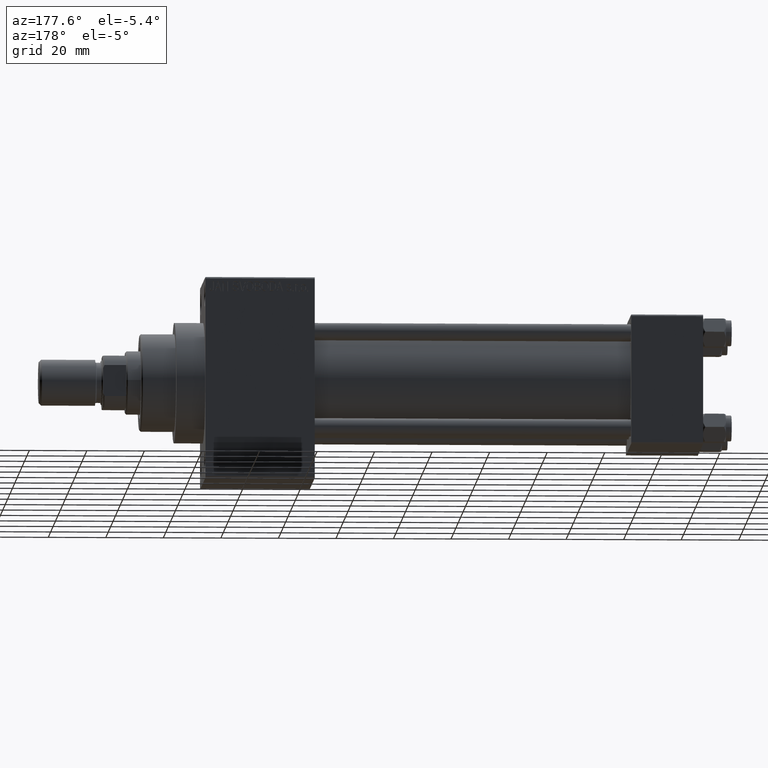
[diagram: clean part render]
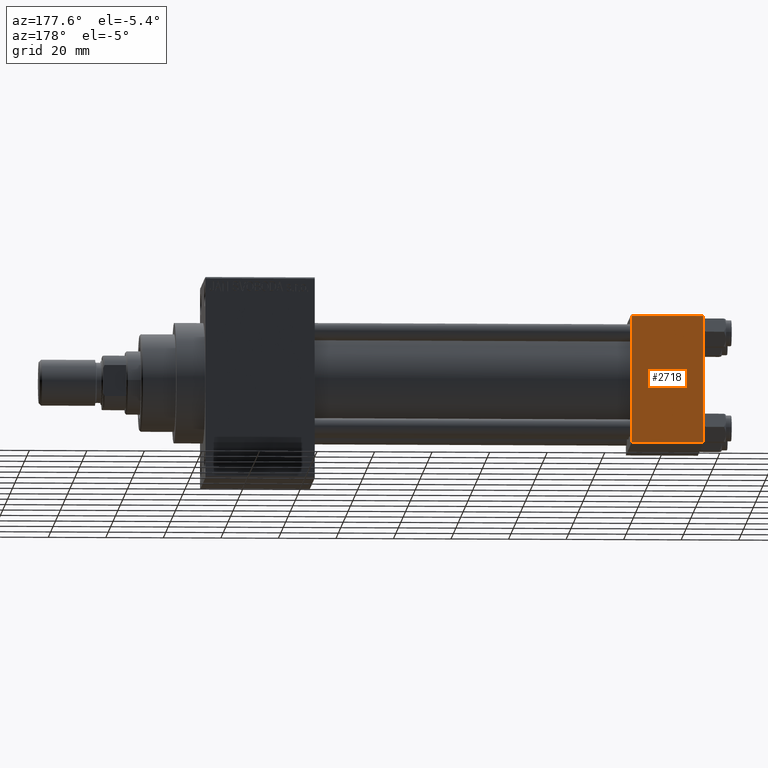
[diagram: same view with one face highlighted and labeled with its STEP entity id]
A machine part, auxiliary view. The second image highlights one B-rep face of the part: STEP entity #2718.
In plain terms, the highlighted planar face has unit normal (0, 1, 0).
Its self-contained STEP definition (entity closure, byte-faithful):
#2025 = CARTESIAN_POINT ( 'NONE',  ( 25.00000000000000000, 22.50000000000000000, -21.99999999999998224 ) ) ;
#2459 = LINE ( 'NONE', #17152, #39731 ) ;
#2718 = ADVANCED_FACE ( 'NONE', ( #40697 ), #29870, .T. ) ;
#4350 = DIRECTION ( 'NONE',  ( 0.000000000000000000, -0.000000000000000000, 1.000000000000000000 ) ) ;
#4897 = VECTOR ( 'NONE', #22481, 1000.000000000000000 ) ;
#5189 = VECTOR ( 'NONE', #16724, 1000.000000000000000 ) ;
#8497 = VERTEX_POINT ( 'NONE', #23502 ) ;
#10065 = CARTESIAN_POINT ( 'NONE',  ( 25.00000000000000000, 22.50000000000000000, 21.99999999999999645 ) ) ;
#10527 = EDGE_CURVE ( 'NONE', #8497, #36203, #41458, .T. ) ;
#10529 = VECTOR ( 'NONE', #43219, 1000.000000000000000 ) ;
#15309 = AXIS2_PLACEMENT_3D ( 'NONE', #44553, #26265, #4350 ) ;
#16202 = EDGE_LOOP ( 'NONE', ( #41795, #36980, #45599, #38692 ) ) ;
#16724 = DIRECTION ( 'NONE',  ( -1.000000000000000000, 0.000000000000000000, 0.000000000000000000 ) ) ;
#17152 = CARTESIAN_POINT ( 'NONE',  ( 0.000000000000000000, 22.50000000000000000, 22.50000000000000355 ) ) ;
#17479 = CARTESIAN_POINT ( 'NONE',  ( 25.00000000000000000, 22.50000000000000000, 22.50000000000000355 ) ) ;
#19392 = LINE ( 'NONE', #2025, #5189 ) ;
#21361 = EDGE_CURVE ( 'NONE', #36203, #27011, #35513, .T. ) ;
#22481 = DIRECTION ( 'NONE',  ( 1.000000000000000000, 0.000000000000000000, 0.000000000000000000 ) ) ;
#23414 = CARTESIAN_POINT ( 'NONE',  ( 25.00000000000000000, 22.50000000000000000, 21.99999999999999645 ) ) ;
#23502 = CARTESIAN_POINT ( 'NONE',  ( 0.000000000000000000, 22.50000000000000000, 21.99999999999999645 ) ) ;
#23847 = EDGE_CURVE ( 'NONE', #27011, #31635, #19392, .T. ) ;
#25060 = CARTESIAN_POINT ( 'NONE',  ( 25.00000000000000000, 22.50000000000000000, -21.99999999999996803 ) ) ;
#26265 = DIRECTION ( 'NONE',  ( -0.000000000000000000, 1.000000000000000000, 0.000000000000000000 ) ) ;
#27011 = VERTEX_POINT ( 'NONE', #25060 ) ;
#29870 = PLANE ( 'NONE',  #15309 ) ;
#31635 = VERTEX_POINT ( 'NONE', #41013 ) ;
#35513 = LINE ( 'NONE', #17479, #10529 ) ;
#36203 = VERTEX_POINT ( 'NONE', #10065 ) ;
#36980 = ORIENTED_EDGE ( 'NONE', *, *, #23847, .T. ) ;
#38692 = ORIENTED_EDGE ( 'NONE', *, *, #10527, .T. ) ;
#39731 = VECTOR ( 'NONE', #46730, 1000.000000000000000 ) ;
#40697 = FACE_OUTER_BOUND ( 'NONE', #16202, .T. ) ;
#41013 = CARTESIAN_POINT ( 'NONE',  ( 0.000000000000000000, 22.50000000000000000, -21.99999999999996803 ) ) ;
#41458 = LINE ( 'NONE', #23414, #4897 ) ;
#41795 = ORIENTED_EDGE ( 'NONE', *, *, #21361, .T. ) ;
#43219 = DIRECTION ( 'NONE',  ( 0.000000000000000000, 0.000000000000000000, -1.000000000000000000 ) ) ;
#44420 = EDGE_CURVE ( 'NONE', #8497, #31635, #2459, .T. ) ;
#44553 = CARTESIAN_POINT ( 'NONE',  ( 25.00000000000000000, 22.50000000000000000, 22.50000000000000355 ) ) ;
#45599 = ORIENTED_EDGE ( 'NONE', *, *, #44420, .F. ) ;
#46730 = DIRECTION ( 'NONE',  ( 0.000000000000000000, 0.000000000000000000, -1.000000000000000000 ) ) ;